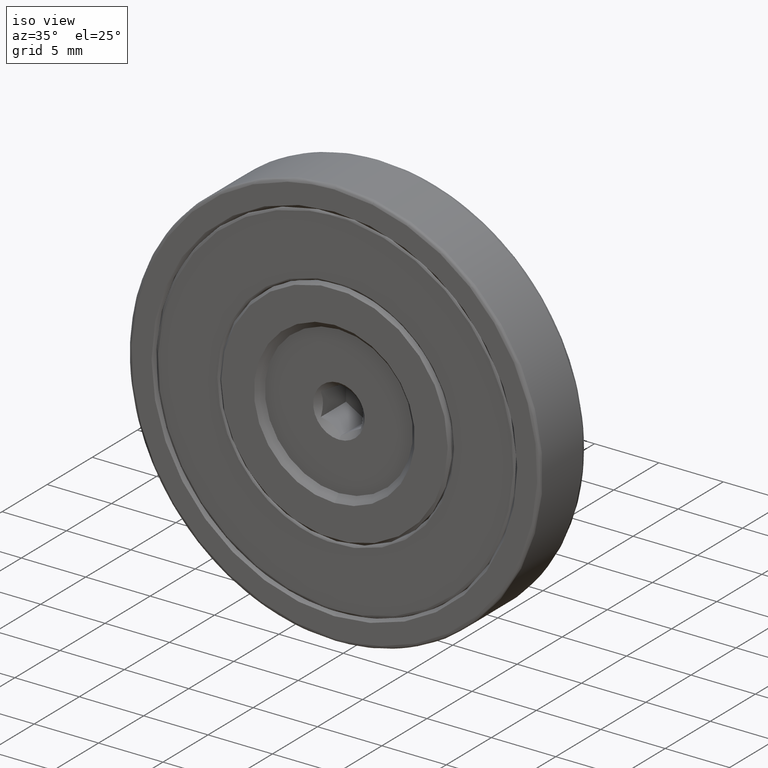
[diagram: clean part render]
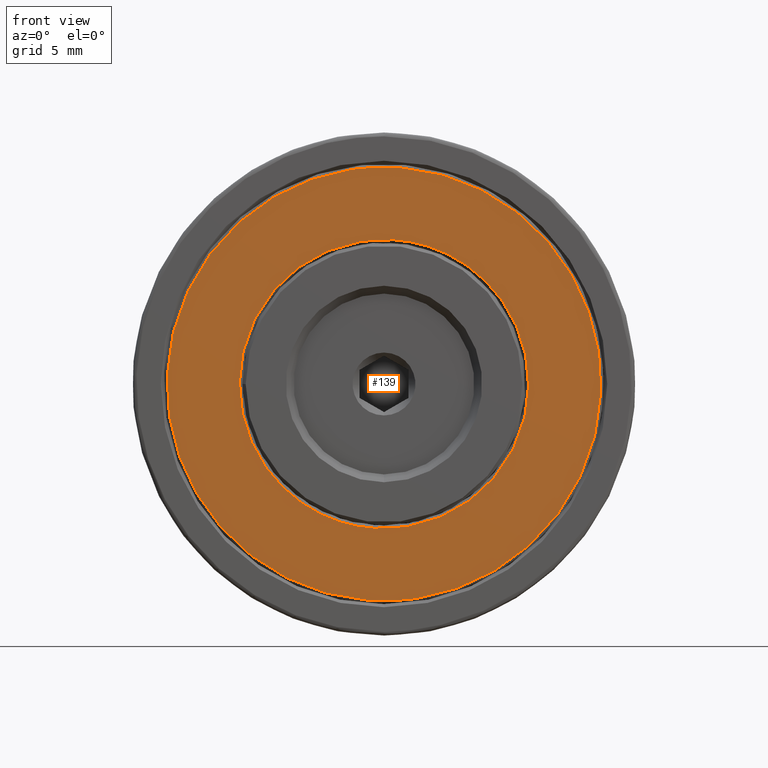
[diagram: tour spotlight — one face highlighted and labeled with its STEP entity id]
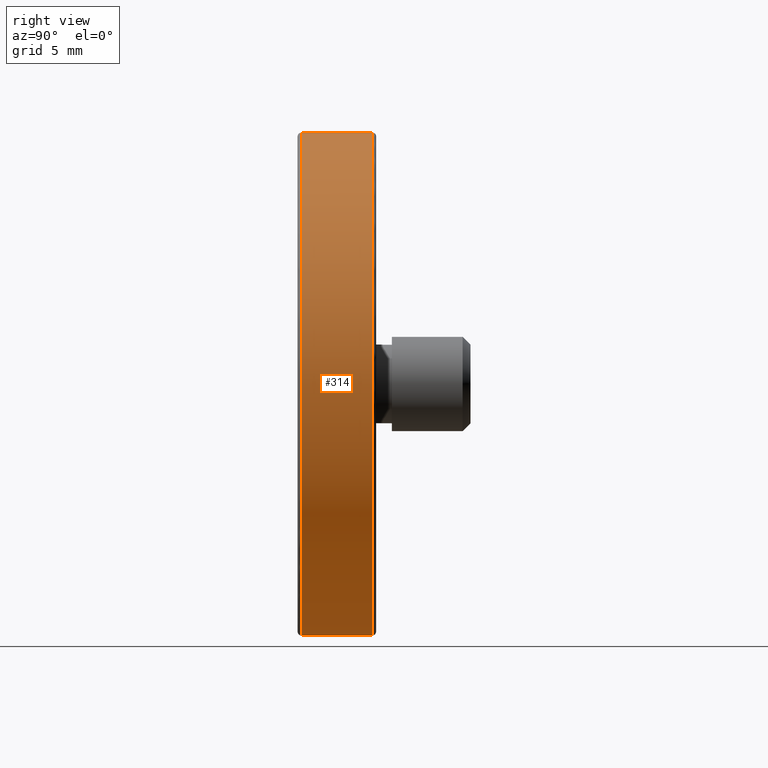
[diagram: tour spotlight — one face highlighted and labeled with its STEP entity id]
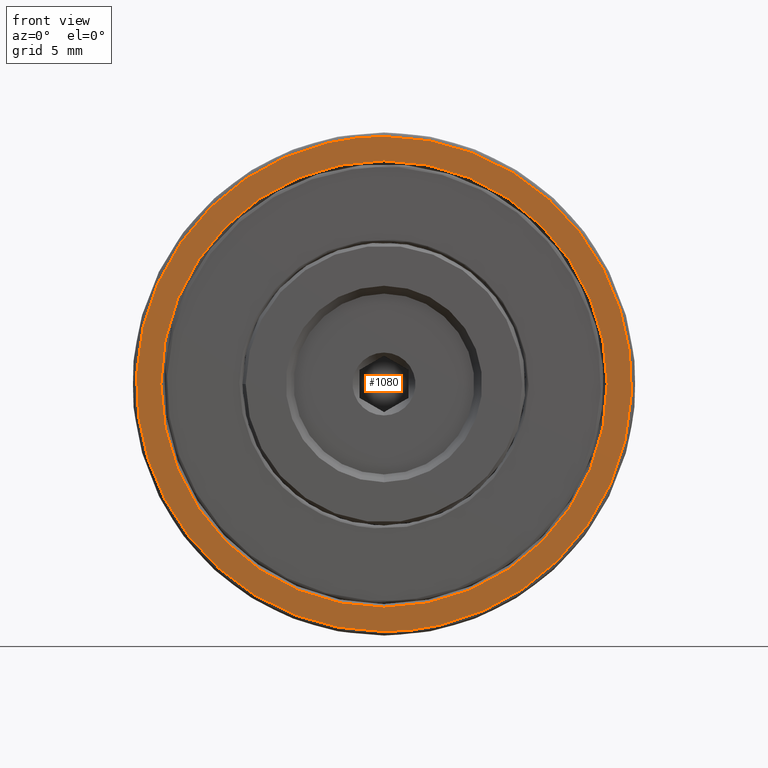
[diagram: tour spotlight — one face highlighted and labeled with its STEP entity id]
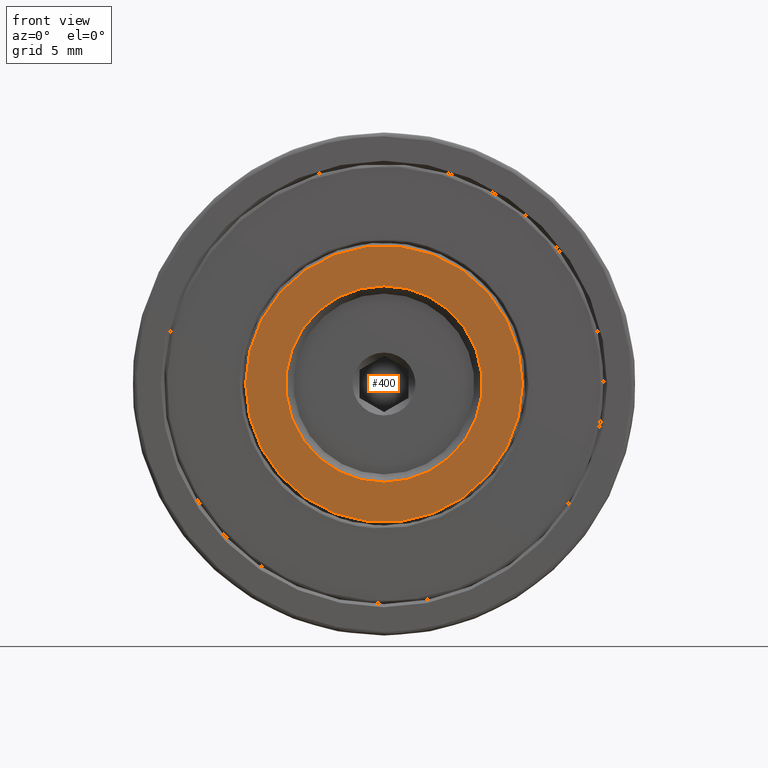
[diagram: tour spotlight — one face highlighted and labeled with its STEP entity id]
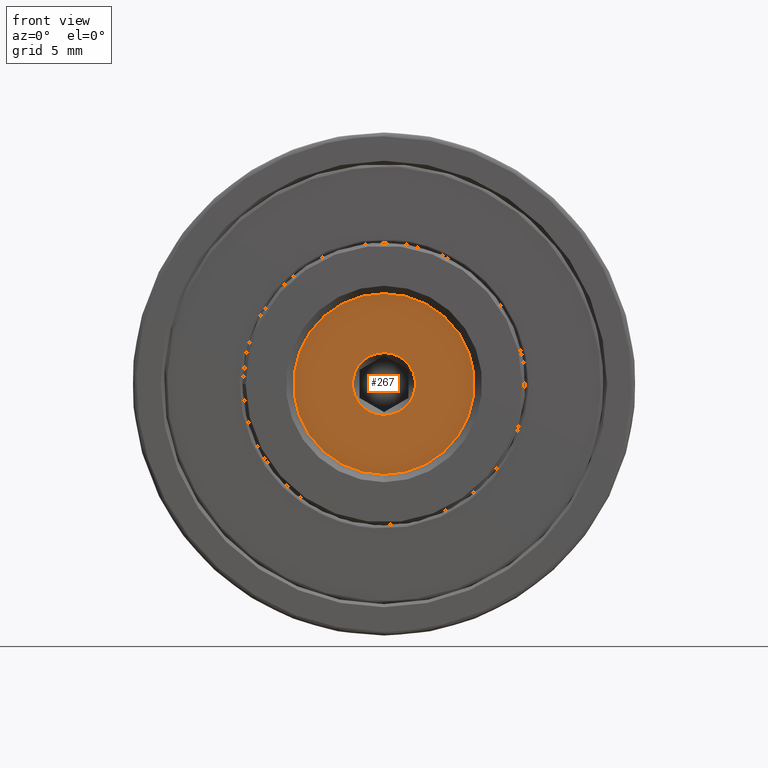
[diagram: tour spotlight — one face highlighted and labeled with its STEP entity id]
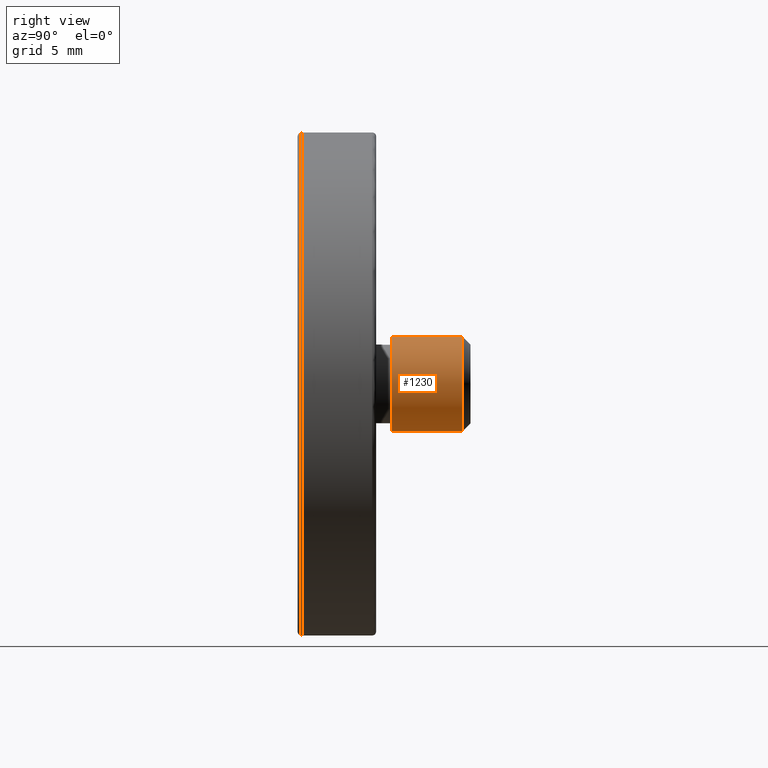
[diagram: tour spotlight — one face highlighted and labeled with its STEP entity id]
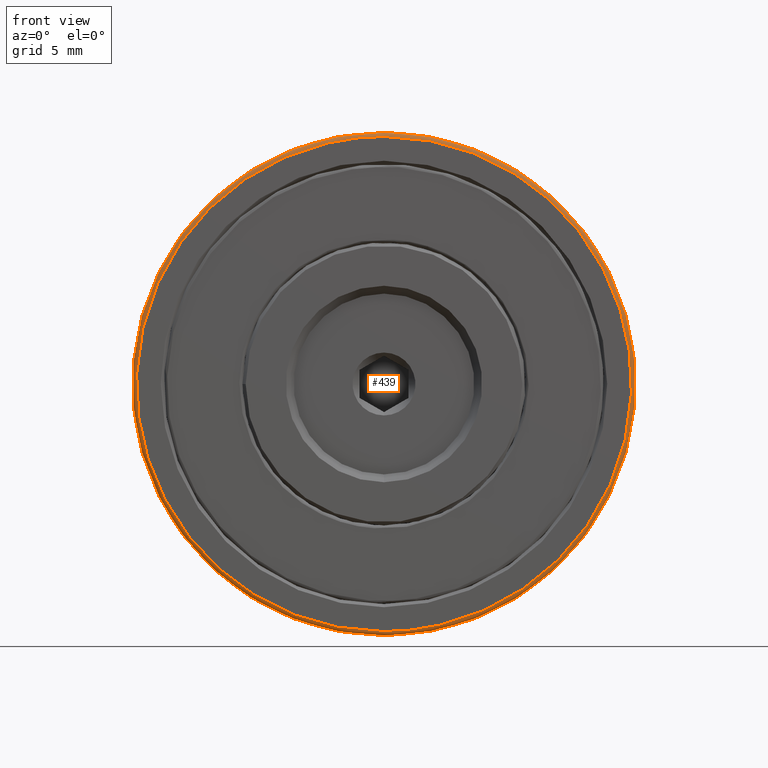
[diagram: tour spotlight — one face highlighted and labeled with its STEP entity id]
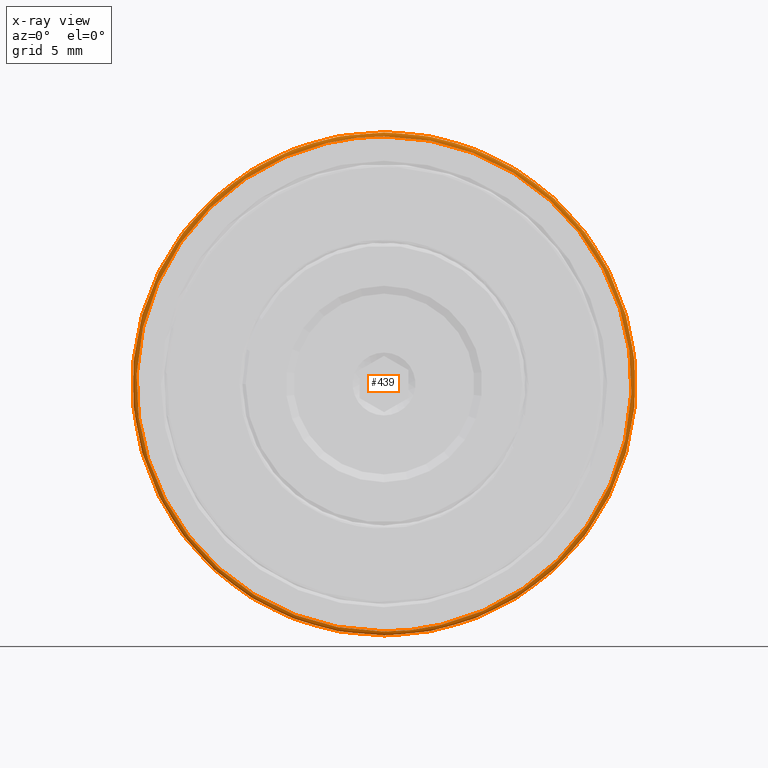
[diagram: x-ray of the same camera — body ghosted, this tour face saturated]
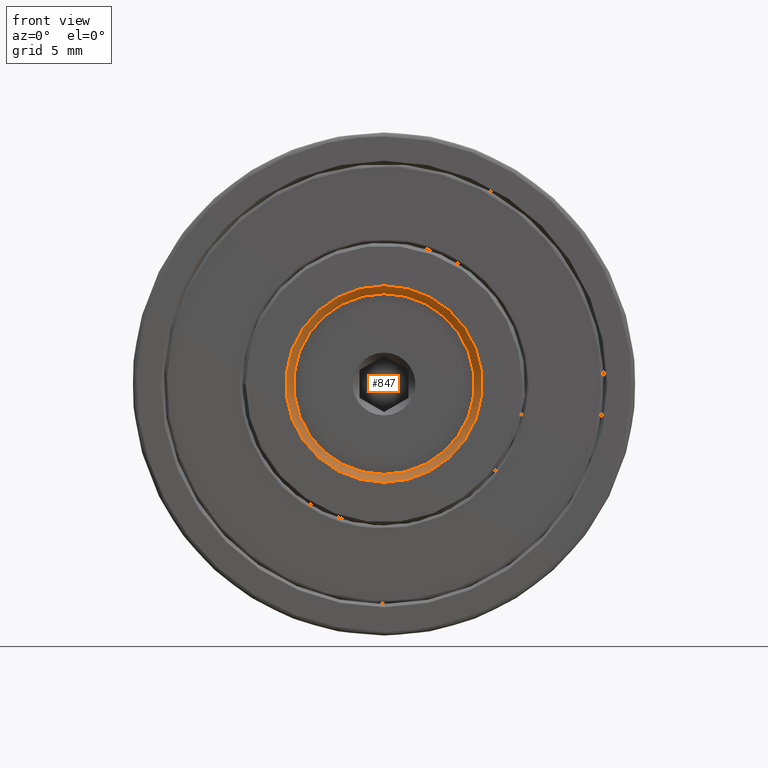
[diagram: tour spotlight — one face highlighted and labeled with its STEP entity id]
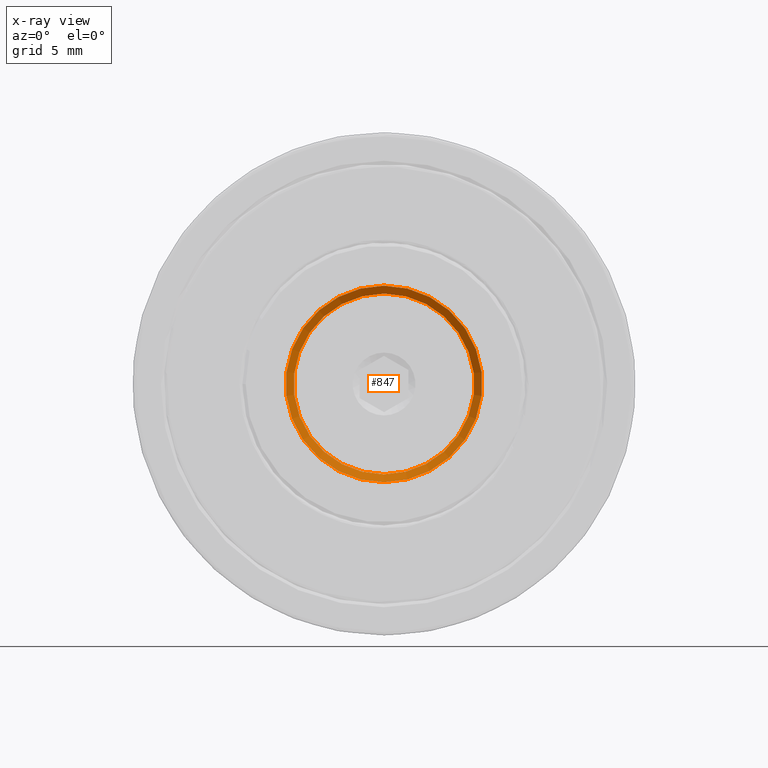
[diagram: x-ray of the same camera — body ghosted, this tour face saturated]
A machine part: a face-by-face anatomy tour. The part has 34 B-rep faces; the first image is the clean iso view, then the 8 largest visible faces are spotlighted one at a time (largest first), each with its STEP entity span.

Face 1 — front view, entity #139. In plain terms, the highlighted planar face has unit normal (-0, 1, 0).
Definition (entity closure, byte-faithful):
#4 = VERTEX_POINT ( 'NONE', #63 ) ;
#28 = CARTESIAN_POINT ( 'NONE',  ( 17.14436299753712589, -5.001574736878457550, 21.55864803919497064 ) ) ;
#39 = CARTESIAN_POINT ( 'NONE',  ( 0.05081765857194815716, -5.001574736878457550, 41.17829909992340731 ) ) ;
#52 = DIRECTION ( 'NONE',  ( 0.06864417722182768189, 0.000000000000000000, 0.9976412065134129259 ) ) ;
#63 = CARTESIAN_POINT ( 'NONE',  ( -1.527998417530087361, -5.001574736878457550, 18.23255135011489969 ) ) ;
#84 = CARTESIAN_POINT ( 'NONE',  ( 0.05081765857194815716, -5.001574736878457550, 41.17829909992340731 ) ) ;
#131 = CARTESIAN_POINT ( 'NONE',  ( -1.527998417530087361, -5.001574736878457550, 18.23255135011489969 ) ) ;
#139 = ADVANCED_FACE ( 'NONE', ( #520, #819 ), #826, .F. ) ;
#152 = CARTESIAN_POINT ( 'NONE',  ( 27.90147817356255544, -5.001574736878457550, 43.87286935856265302 ) ) ;
#164 = CARTESIAN_POINT ( 'NONE',  ( -1.527998417530087361, -5.001574736878457550, 18.23255135011489969 ) ) ;
#165 = ORIENTED_EDGE ( 'NONE', *, *, #623, .F. ) ;
#218 = EDGE_CURVE ( 'NONE', #4, #310, #414, .T. ) ;
#276 = ORIENTED_EDGE ( 'NONE', *, *, #218, .F. ) ;
#310 = VERTEX_POINT ( 'NONE', #731 ) ;
#313 = CARTESIAN_POINT ( 'NONE',  ( -1.212235202309680293, -5.001574736878457550, 22.82170090007659979 ) ) ;
#320 = EDGE_LOOP ( 'NONE', ( #165, #458 ) ) ;
#377 = CARTESIAN_POINT ( 'NONE',  ( -18.30578054127485998, -5.001574736878457550, 42.44135196080503647 ) ) ;
#409 = CARTESIAN_POINT ( 'NONE',  ( 18.40741585841875505, -5.001574736878457550, 39.91524623904177105 ) ) ;
#414 =( BOUNDED_CURVE ( )  B_SPLINE_CURVE ( 3, ( #131, #1116, #911, #418 ),
 .UNSPECIFIED., .F., .T. ) 
 B_SPLINE_CURVE_WITH_KNOTS ( ( 4, 4 ),
 ( 0.000000000000000000, 1.000000000000000000 ),
 .UNSPECIFIED. ) 
 CURVE ( )  GEOMETRIC_REPRESENTATION_ITEM ( )  RATIONAL_B_SPLINE_CURVE ( ( 1.000000000000000000, 0.3333333333333333703, 0.3333333333333333703, 1.000000000000000000 ) ) 
 REPRESENTATION_ITEM ( '' )  );
#418 = CARTESIAN_POINT ( 'NONE',  ( 0.3665808737923556548, -5.001574736878457550, 45.76744864988510386 ) ) ;
#433 = DIRECTION ( 'NONE',  ( -0.000000000000000000, 1.000000000000000000, 0.000000000000000000 ) ) ;
#440 = CARTESIAN_POINT ( 'NONE',  ( 0.05081765857194815716, -5.001574736878457550, 41.17829909992340731 ) ) ;
#458 = ORIENTED_EDGE ( 'NONE', *, *, #935, .F. ) ;
#461 =( BOUNDED_CURVE ( )  B_SPLINE_CURVE ( 3, ( #504, #28, #409, #39 ),
 .UNSPECIFIED., .F., .T. ) 
 B_SPLINE_CURVE_WITH_KNOTS ( ( 4, 4 ),
 ( 0.000000000000000000, 1.000000000000000000 ),
 .UNSPECIFIED. ) 
 CURVE ( )  GEOMETRIC_REPRESENTATION_ITEM ( )  RATIONAL_B_SPLINE_CURVE ( ( 1.000000000000000000, 0.3333333333333333703, 0.3333333333333333703, 1.000000000000000000 ) ) 
 REPRESENTATION_ITEM ( '' )  );
#495 = CARTESIAN_POINT ( 'NONE',  ( -19.56883340215648914, -5.001574736878457550, 24.08475376095822895 ) ) ;
#504 = CARTESIAN_POINT ( 'NONE',  ( -1.212235202309680293, -5.001574736878457550, 22.82170090007659979 ) ) ;
#520 = FACE_BOUND ( 'NONE', #320, .T. ) ;
#568 = AXIS2_PLACEMENT_3D ( 'NONE', #1021, #433, #52 ) ;
#623 = EDGE_CURVE ( 'NONE', #1083, #930, #933, .T. ) ;
#675 =( BOUNDED_CURVE ( )  B_SPLINE_CURVE ( 3, ( #739, #152, #1227, #164 ),
 .UNSPECIFIED., .F., .T. ) 
 B_SPLINE_CURVE_WITH_KNOTS ( ( 4, 4 ),
 ( 0.000000000000000000, 1.000000000000000000 ),
 .UNSPECIFIED. ) 
 CURVE ( )  GEOMETRIC_REPRESENTATION_ITEM ( )  RATIONAL_B_SPLINE_CURVE ( ( 1.000000000000000000, 0.3333333333333333703, 0.3333333333333333703, 1.000000000000000000 ) ) 
 REPRESENTATION_ITEM ( '' )  );
#731 = CARTESIAN_POINT ( 'NONE',  ( 0.3665808737923556548, -5.001574736878457550, 45.76744864988510386 ) ) ;
#739 = CARTESIAN_POINT ( 'NONE',  ( 0.3665808737923556548, -5.001574736878457550, 45.76744864988510386 ) ) ;
#754 = EDGE_LOOP ( 'NONE', ( #816, #276 ) ) ;
#771 = CARTESIAN_POINT ( 'NONE',  ( -1.212235202309680293, -5.001574736878457550, 22.82170090007659979 ) ) ;
#816 = ORIENTED_EDGE ( 'NONE', *, *, #991, .F. ) ;
#819 = FACE_OUTER_BOUND ( 'NONE', #754, .T. ) ;
#826 = PLANE ( 'NONE',  #568 ) ;
#911 = CARTESIAN_POINT ( 'NONE',  ( -27.16831642597784580, -5.001574736878457550, 47.66202794120755470 ) ) ;
#930 = VERTEX_POINT ( 'NONE', #313 ) ;
#933 =( BOUNDED_CURVE ( )  B_SPLINE_CURVE ( 3, ( #84, #377, #495, #771 ),
 .UNSPECIFIED., .F., .T. ) 
 B_SPLINE_CURVE_WITH_KNOTS ( ( 4, 4 ),
 ( 0.000000000000000000, 1.000000000000000000 ),
 .UNSPECIFIED. ) 
 CURVE ( )  GEOMETRIC_REPRESENTATION_ITEM ( )  RATIONAL_B_SPLINE_CURVE ( ( 1.000000000000000000, 0.3333333333333333703, 0.3333333333333333703, 1.000000000000000000 ) ) 
 REPRESENTATION_ITEM ( '' )  );
#935 = EDGE_CURVE ( 'NONE', #930, #1083, #461, .T. ) ;
#991 = EDGE_CURVE ( 'NONE', #310, #4, #675, .T. ) ;
#1021 = CARTESIAN_POINT ( 'NONE',  ( -0.5807087718688666023, -5.001574736878457550, 32.00000000000000000 ) ) ;
#1083 = VERTEX_POINT ( 'NONE', #440 ) ;
#1116 = CARTESIAN_POINT ( 'NONE',  ( -29.06289571730028598, -5.001574736878457550, 20.12713064143734343 ) ) ;
#1227 = CARTESIAN_POINT ( 'NONE',  ( 26.00689888224011170, -5.001574736878457550, 16.33797205879245951 ) ) ;

Face 2 — right view, entity #314. In plain terms, the highlighted cylindrical surface (bore or boss wall) has radius 16 mm, axis along (-0, -1, -0).
Definition (entity closure, byte-faithful):
#35 = ORIENTED_EDGE ( 'NONE', *, *, #748, .T. ) ;
#76 = EDGE_LOOP ( 'NONE', ( #35 ) ) ;
#85 = AXIS2_PLACEMENT_3D ( 'NONE', #934, #1147, #948 ) ;
#145 = ORIENTED_EDGE ( 'NONE', *, *, #329, .F. ) ;
#207 = CIRCLE ( 'NONE', #878, 16.00000000000000000 ) ;
#264 = FACE_OUTER_BOUND ( 'NONE', #1064, .T. ) ;
#314 = ADVANCED_FACE ( 'NONE', ( #264, #550 ), #538, .T. ) ;
#329 = EDGE_CURVE ( 'NONE', #1047, #1047, #207, .T. ) ;
#346 = CIRCLE ( 'NONE', #528, 16.00000000000000000 ) ;
#442 = CARTESIAN_POINT ( 'NONE',  ( -0.5807087718688666023, -4.901574736878457017, 32.00000000000000000 ) ) ;
#471 = VERTEX_POINT ( 'NONE', #573 ) ;
#528 = AXIS2_PLACEMENT_3D ( 'NONE', #442, #1219, #741 ) ;
#538 = CYLINDRICAL_SURFACE ( 'NONE', #85, 16.00000000000000000 ) ;
#550 = FACE_OUTER_BOUND ( 'NONE', #76, .T. ) ;
#573 = CARTESIAN_POINT ( 'NONE',  ( -0.5807087718688666023, -4.901574736878457017, 16.00000000000000000 ) ) ;
#651 = DIRECTION ( 'NONE',  ( 0.000000000000000000, 1.000000000000000000, 0.000000000000000000 ) ) ;
#658 = DIRECTION ( 'NONE',  ( 0.000000000000000000, 0.000000000000000000, 1.000000000000000000 ) ) ;
#741 = DIRECTION ( 'NONE',  ( 0.000000000000000000, 0.000000000000000000, -1.000000000000000000 ) ) ;
#748 = EDGE_CURVE ( 'NONE', #471, #471, #346, .T. ) ;
#878 = AXIS2_PLACEMENT_3D ( 'NONE', #1033, #651, #658 ) ;
#934 = CARTESIAN_POINT ( 'NONE',  ( -0.5807087718688666023, -0.1515747368784573501, 32.00000000000000000 ) ) ;
#948 = DIRECTION ( 'NONE',  ( 0.000000000000000000, 0.000000000000000000, -1.000000000000000000 ) ) ;
#1033 = CARTESIAN_POINT ( 'NONE',  ( -0.5807087718688666023, -0.4015747368784575722, 32.00000000000000000 ) ) ;
#1047 = VERTEX_POINT ( 'NONE', #1149 ) ;
#1064 = EDGE_LOOP ( 'NONE', ( #145 ) ) ;
#1147 = DIRECTION ( 'NONE',  ( -0.000000000000000000, -1.000000000000000000, -0.000000000000000000 ) ) ;
#1149 = CARTESIAN_POINT ( 'NONE',  ( -0.5807087718688666023, -0.4015747368784575722, 48.00000000000000000 ) ) ;
#1219 = DIRECTION ( 'NONE',  ( 0.000000000000000000, 1.000000000000000000, 0.000000000000000000 ) ) ;

Face 3 — front view, entity #1080. In plain terms, the highlighted planar face has unit normal (0, 1, 0).
Definition (entity closure, byte-faithful):
#1 = CARTESIAN_POINT ( 'NONE',  ( -0.5807087718688666023, -5.151574736878457905, 17.79999999999999716 ) ) ;
#16 = CARTESIAN_POINT ( 'NONE',  ( -0.5807087718688647149, -5.151574736878457905, 16.25000000000000000 ) ) ;
#62 = FACE_OUTER_BOUND ( 'NONE', #153, .T. ) ;
#109 = AXIS2_PLACEMENT_3D ( 'NONE', #1011, #936, #1016 ) ;
#111 = CARTESIAN_POINT ( 'NONE',  ( -0.5807087718688666023, -5.151574736878457905, 47.75000000000000000 ) ) ;
#115 =( BOUNDED_CURVE ( )  B_SPLINE_CURVE ( 3, ( #169, #248, #175, #444 ),
 .UNSPECIFIED., .F., .T. ) 
 B_SPLINE_CURVE_WITH_KNOTS ( ( 4, 4 ),
 ( 0.000000000000000000, 1.000000000000000000 ),
 .UNSPECIFIED. ) 
 CURVE ( )  GEOMETRIC_REPRESENTATION_ITEM ( )  RATIONAL_B_SPLINE_CURVE ( ( 1.000000000000000000, 0.3333333333333333703, 0.3333333333333333703, 1.000000000000000000 ) ) 
 REPRESENTATION_ITEM ( '' )  );
#153 = EDGE_LOOP ( 'NONE', ( #594, #1159 ) ) ;
#169 = CARTESIAN_POINT ( 'NONE',  ( -0.5807087718688647149, -5.151574736878457905, 16.25000000000000000 ) ) ;
#175 = CARTESIAN_POINT ( 'NONE',  ( -32.08070877186885639, -5.151574736878457905, 47.75000000000000000 ) ) ;
#187 = AXIS2_PLACEMENT_3D ( 'NONE', #1225, #1214, #1238 ) ;
#248 = CARTESIAN_POINT ( 'NONE',  ( -32.08070877186885639, -5.151574736878457905, 16.24999999999999645 ) ) ;
#308 = EDGE_CURVE ( 'NONE', #995, #679, #115, .T. ) ;
#363 = CARTESIAN_POINT ( 'NONE',  ( -0.5807087718688666023, -5.151574736878457905, 47.75000000000000000 ) ) ;
#403 = ORIENTED_EDGE ( 'NONE', *, *, #496, .F. ) ;
#444 = CARTESIAN_POINT ( 'NONE',  ( -0.5807087718688666023, -5.151574736878457905, 47.75000000000000000 ) ) ;
#447 = EDGE_LOOP ( 'NONE', ( #403 ) ) ;
#493 = CARTESIAN_POINT ( 'NONE',  ( 30.91929122813112585, -5.151574736878457905, 47.75000000000000000 ) ) ;
#496 = EDGE_CURVE ( 'NONE', #1248, #1248, #732, .T. ) ;
#534 = PLANE ( 'NONE',  #109 ) ;
#594 = ORIENTED_EDGE ( 'NONE', *, *, #975, .F. ) ;
#679 = VERTEX_POINT ( 'NONE', #363 ) ;
#732 = CIRCLE ( 'NONE', #187, 14.20000000000000462 ) ;
#821 = CARTESIAN_POINT ( 'NONE',  ( -0.5807087718688647149, -5.151574736878457905, 16.25000000000000000 ) ) ;
#887 = CARTESIAN_POINT ( 'NONE',  ( 30.91929122813113295, -5.151574736878457905, 16.25000000000000355 ) ) ;
#936 = DIRECTION ( 'NONE',  ( 0.000000000000000000, 1.000000000000000000, 0.000000000000000000 ) ) ;
#940 =( BOUNDED_CURVE ( )  B_SPLINE_CURVE ( 3, ( #111, #493, #887, #16 ),
 .UNSPECIFIED., .F., .T. ) 
 B_SPLINE_CURVE_WITH_KNOTS ( ( 4, 4 ),
 ( 0.000000000000000000, 1.000000000000000000 ),
 .UNSPECIFIED. ) 
 CURVE ( )  GEOMETRIC_REPRESENTATION_ITEM ( )  RATIONAL_B_SPLINE_CURVE ( ( 1.000000000000000000, 0.3333333333333333703, 0.3333333333333333703, 1.000000000000000000 ) ) 
 REPRESENTATION_ITEM ( '' )  );
#975 = EDGE_CURVE ( 'NONE', #679, #995, #940, .T. ) ;
#995 = VERTEX_POINT ( 'NONE', #821 ) ;
#1011 = CARTESIAN_POINT ( 'NONE',  ( -0.5807087718688666023, -5.151574736878457905, 32.00000000000000000 ) ) ;
#1016 = DIRECTION ( 'NONE',  ( 0.000000000000000000, -0.000000000000000000, 1.000000000000000000 ) ) ;
#1034 = FACE_BOUND ( 'NONE', #447, .T. ) ;
#1080 = ADVANCED_FACE ( 'NONE', ( #62, #1034 ), #534, .F. ) ;
#1159 = ORIENTED_EDGE ( 'NONE', *, *, #308, .F. ) ;
#1214 = DIRECTION ( 'NONE',  ( 0.000000000000000000, -1.000000000000000000, 0.000000000000000000 ) ) ;
#1225 = CARTESIAN_POINT ( 'NONE',  ( -0.5807087718688666023, -5.151574736878457905, 32.00000000000000000 ) ) ;
#1238 = DIRECTION ( 'NONE',  ( 0.000000000000000000, 0.000000000000000000, -1.000000000000000000 ) ) ;
#1248 = VERTEX_POINT ( 'NONE', #1 ) ;

Face 4 — front view, entity #400. In plain terms, the highlighted planar face has unit normal (0, 1, 0).
Definition (entity closure, byte-faithful):
#78 = DIRECTION ( 'NONE',  ( 0.000000000000000000, -0.000000000000000000, 1.000000000000000000 ) ) ;
#102 = CARTESIAN_POINT ( 'NONE',  ( -0.5807087718688666023, -5.151574736878457905, 32.00000000000000000 ) ) ;
#144 = DIRECTION ( 'NONE',  ( -1.000000000000000000, 0.000000000000000000, 0.000000000000000000 ) ) ;
#197 = ORIENTED_EDGE ( 'NONE', *, *, #1105, .F. ) ;
#279 = VERTEX_POINT ( 'NONE', #767 ) ;
#379 = DIRECTION ( 'NONE',  ( 0.000000000000000000, 0.000000000000000000, -1.000000000000000000 ) ) ;
#400 = ADVANCED_FACE ( 'NONE', ( #744, #1129 ), #1134, .F. ) ;
#411 = EDGE_LOOP ( 'NONE', ( #1171 ) ) ;
#671 = CIRCLE ( 'NONE', #1221, 6.250000000022737368 ) ;
#744 = FACE_BOUND ( 'NONE', #411, .T. ) ;
#767 = CARTESIAN_POINT ( 'NONE',  ( -0.5807087718688666023, -5.151574736878457905, 25.74999999997726263 ) ) ;
#820 = AXIS2_PLACEMENT_3D ( 'NONE', #1211, #832, #144 ) ;
#832 = DIRECTION ( 'NONE',  ( 1.505836350674311564E-18, 1.000000000000000000, 0.000000000000000000 ) ) ;
#954 = DIRECTION ( 'NONE',  ( 0.000000000000000000, 1.000000000000000000, 0.000000000000000000 ) ) ;
#1041 = CARTESIAN_POINT ( 'NONE',  ( -9.380708771868876639, -5.151574736878457905, 32.00000000000000000 ) ) ;
#1060 = VERTEX_POINT ( 'NONE', #1041 ) ;
#1105 = EDGE_CURVE ( 'NONE', #1060, #1060, #1186, .T. ) ;
#1129 = FACE_OUTER_BOUND ( 'NONE', #1185, .T. ) ;
#1134 = PLANE ( 'NONE',  #1241 ) ;
#1155 = DIRECTION ( 'NONE',  ( 0.000000000000000000, -1.000000000000000000, 0.000000000000000000 ) ) ;
#1171 = ORIENTED_EDGE ( 'NONE', *, *, #1249, .F. ) ;
#1185 = EDGE_LOOP ( 'NONE', ( #197 ) ) ;
#1186 = CIRCLE ( 'NONE', #820, 8.800000000000009592 ) ;
#1211 = CARTESIAN_POINT ( 'NONE',  ( -0.5807087718688666023, -5.151574736878457905, 32.00000000000000000 ) ) ;
#1221 = AXIS2_PLACEMENT_3D ( 'NONE', #102, #1155, #379 ) ;
#1232 = CARTESIAN_POINT ( 'NONE',  ( -0.5807087718688666023, -5.151574736878457905, 32.00000000000000000 ) ) ;
#1241 = AXIS2_PLACEMENT_3D ( 'NONE', #1232, #954, #78 ) ;
#1249 = EDGE_CURVE ( 'NONE', #279, #279, #671, .T. ) ;

Face 5 — front view, entity #267. In plain terms, the highlighted planar face has unit normal (0, -1, 0).
Definition (entity closure, byte-faithful):
#7 = CARTESIAN_POINT ( 'NONE',  ( -0.5807087718688666023, -4.651574736947124755, 29.99999999999045031 ) ) ;
#33 = EDGE_CURVE ( 'NONE', #1054, #1054, #1082, .T. ) ;
#222 = EDGE_LOOP ( 'NONE', ( #631 ) ) ;
#267 = ADVANCED_FACE ( 'NONE', ( #492, #719 ), #808, .T. ) ;
#331 = CARTESIAN_POINT ( 'NONE',  ( -0.5807087718688666023, -4.651574736947124755, 32.00000000000000000 ) ) ;
#469 = AXIS2_PLACEMENT_3D ( 'NONE', #331, #1112, #622 ) ;
#492 = FACE_OUTER_BOUND ( 'NONE', #1035, .T. ) ;
#526 = DIRECTION ( 'NONE',  ( 0.000000000000000000, -1.000000000000000000, 0.000000000000000000 ) ) ;
#574 = DIRECTION ( 'NONE',  ( 0.000000000000000000, -1.000000000000000000, 0.000000000000000000 ) ) ;
#585 = CARTESIAN_POINT ( 'NONE',  ( -0.5807087718688666023, -4.651574736878457905, 32.00000000000000000 ) ) ;
#622 = DIRECTION ( 'NONE',  ( 0.000000000000000000, 0.000000000000000000, -1.000000000000000000 ) ) ;
#631 = ORIENTED_EDGE ( 'NONE', *, *, #1066, .T. ) ;
#645 = VERTEX_POINT ( 'NONE', #7 ) ;
#649 = CIRCLE ( 'NONE', #469, 2.000000000009549694 ) ;
#654 = DIRECTION ( 'NONE',  ( 0.000000000000000000, 0.000000000000000000, -1.000000000000000000 ) ) ;
#666 = CARTESIAN_POINT ( 'NONE',  ( -0.5807087718688666023, -4.651574736890281336, 26.24999999996543920 ) ) ;
#719 = FACE_BOUND ( 'NONE', #222, .T. ) ;
#750 = CARTESIAN_POINT ( 'NONE',  ( -0.5807087718688666023, -4.651574736890281336, 32.00000000000000000 ) ) ;
#800 = AXIS2_PLACEMENT_3D ( 'NONE', #750, #574, #654 ) ;
#808 = PLANE ( 'NONE',  #1161 ) ;
#886 = DIRECTION ( 'NONE',  ( 0.000000000000000000, -0.000000000000000000, -1.000000000000000000 ) ) ;
#1035 = EDGE_LOOP ( 'NONE', ( #1200 ) ) ;
#1054 = VERTEX_POINT ( 'NONE', #666 ) ;
#1066 = EDGE_CURVE ( 'NONE', #645, #645, #649, .T. ) ;
#1082 = CIRCLE ( 'NONE', #800, 5.750000000034560799 ) ;
#1112 = DIRECTION ( 'NONE',  ( -0.000000000000000000, 1.000000000000000000, -0.000000000000000000 ) ) ;
#1161 = AXIS2_PLACEMENT_3D ( 'NONE', #585, #526, #886 ) ;
#1200 = ORIENTED_EDGE ( 'NONE', *, *, #33, .T. ) ;

Face 6 — right view, entity #1230. In plain terms, the highlighted cylindrical surface (bore or boss wall) has radius 3 mm, axis along (-0, -1, -0).
Definition (entity closure, byte-faithful):
#69 = DIRECTION ( 'NONE',  ( 0.000000000000000000, 0.000000000000000000, -1.000000000000000000 ) ) ;
#96 = CARTESIAN_POINT ( 'NONE',  ( -0.5807087718688666023, 0.8484252631215426499, 29.00000000000000000 ) ) ;
#158 = FACE_OUTER_BOUND ( 'NONE', #361, .T. ) ;
#242 = DIRECTION ( 'NONE',  ( 0.000000000000000000, 0.000000000000000000, -1.000000000000000000 ) ) ;
#254 = DIRECTION ( 'NONE',  ( -0.000000000000000000, -1.000000000000000000, -0.000000000000000000 ) ) ;
#272 = VERTEX_POINT ( 'NONE', #659 ) ;
#288 = VERTEX_POINT ( 'NONE', #96 ) ;
#352 = CARTESIAN_POINT ( 'NONE',  ( -0.5807087718688666023, 5.348425263121539430, 32.00000000000000000 ) ) ;
#361 = EDGE_LOOP ( 'NONE', ( #908 ) ) ;
#391 = EDGE_CURVE ( 'NONE', #272, #272, #527, .T. ) ;
#406 = AXIS2_PLACEMENT_3D ( 'NONE', #352, #1053, #856 ) ;
#446 = DIRECTION ( 'NONE',  ( 0.000000000000000000, 1.000000000000000000, 0.000000000000000000 ) ) ;
#527 = CIRCLE ( 'NONE', #406, 2.999999999999999112 ) ;
#539 = CARTESIAN_POINT ( 'NONE',  ( -0.5807087718688666023, 5.848425263121542095, 32.00000000000000000 ) ) ;
#617 = FACE_OUTER_BOUND ( 'NONE', #790, .T. ) ;
#635 = CYLINDRICAL_SURFACE ( 'NONE', #881, 2.999999999999999112 ) ;
#659 = CARTESIAN_POINT ( 'NONE',  ( -0.5807087718688666023, 5.348425263121539430, 29.00000000000000000 ) ) ;
#790 = EDGE_LOOP ( 'NONE', ( #918 ) ) ;
#856 = DIRECTION ( 'NONE',  ( 0.000000000000000000, 0.000000000000000000, -1.000000000000000000 ) ) ;
#881 = AXIS2_PLACEMENT_3D ( 'NONE', #539, #254, #69 ) ;
#908 = ORIENTED_EDGE ( 'NONE', *, *, #1158, .T. ) ;
#918 = ORIENTED_EDGE ( 'NONE', *, *, #391, .T. ) ;
#1053 = DIRECTION ( 'NONE',  ( -0.000000000000000000, -1.000000000000000000, -0.000000000000000000 ) ) ;
#1103 = CIRCLE ( 'NONE', #1163, 2.999999999999999112 ) ;
#1117 = CARTESIAN_POINT ( 'NONE',  ( -0.5807087718688666023, 0.8484252631215426499, 32.00000000000000000 ) ) ;
#1158 = EDGE_CURVE ( 'NONE', #288, #288, #1103, .T. ) ;
#1163 = AXIS2_PLACEMENT_3D ( 'NONE', #1117, #446, #242 ) ;
#1230 = ADVANCED_FACE ( 'NONE', ( #617, #158 ), #635, .T. ) ;

Face 7 — front view, entity #439. An x-ray twin of the same camera follows (body ghosted, this face saturated) — the face is partly hidden behind the body. In plain terms, the highlighted face is a freeform B-spline surface patch.
Definition (entity closure, byte-faithful):
#6 = CARTESIAN_POINT ( 'NONE',  ( -32.37360199068232447, -5.151574736878457017, 16.10355339059326951 ) ) ;
#13 = CARTESIAN_POINT ( 'NONE',  ( -32.08070877186887060, -5.151574736878456129, 47.75000000000000000 ) ) ;
#16 = CARTESIAN_POINT ( 'NONE',  ( -0.5807087718688647149, -5.151574736878457905, 16.25000000000000000 ) ) ;
#87 = CARTESIAN_POINT ( 'NONE',  ( -32.08070877186887060, -5.151574736878456129, 16.25000000000000355 ) ) ;
#94 = CARTESIAN_POINT ( 'NONE',  ( 30.91929122813113651, -5.151574736878456129, 47.75000000000000000 ) ) ;
#101 = CARTESIAN_POINT ( 'NONE',  ( 31.21218444694459038, -5.151574736878457017, 16.10355339059326951 ) ) ;
#107 = CARTESIAN_POINT ( 'NONE',  ( -32.58070877186886349, -5.048021346285183064, 16.00000000000000000 ) ) ;
#111 = CARTESIAN_POINT ( 'NONE',  ( -0.5807087718688666023, -5.151574736878457905, 47.75000000000000000 ) ) ;
#115 =( BOUNDED_CURVE ( )  B_SPLINE_CURVE ( 3, ( #169, #248, #175, #444 ),
 .UNSPECIFIED., .F., .T. ) 
 B_SPLINE_CURVE_WITH_KNOTS ( ( 4, 4 ),
 ( 0.000000000000000000, 1.000000000000000000 ),
 .UNSPECIFIED. ) 
 CURVE ( )  GEOMETRIC_REPRESENTATION_ITEM ( )  RATIONAL_B_SPLINE_CURVE ( ( 1.000000000000000000, 0.3333333333333333703, 0.3333333333333333703, 1.000000000000000000 ) ) 
 REPRESENTATION_ITEM ( '' )  );
#116 = CARTESIAN_POINT ( 'NONE',  ( 30.91929122813113651, -5.151574736878456129, 16.25000000000000355 ) ) ;
#169 = CARTESIAN_POINT ( 'NONE',  ( -0.5807087718688647149, -5.151574736878457905, 16.25000000000000000 ) ) ;
#175 = CARTESIAN_POINT ( 'NONE',  ( -32.08070877186885639, -5.151574736878457905, 47.75000000000000000 ) ) ;
#188 = CARTESIAN_POINT ( 'NONE',  ( -32.58070877186886349, -5.048021346285183064, 48.00000000000000000 ) ) ;
#248 = CARTESIAN_POINT ( 'NONE',  ( -32.08070877186885639, -5.151574736878457905, 16.24999999999999645 ) ) ;
#278 = CARTESIAN_POINT ( 'NONE',  ( 31.21218444694459038, -5.151574736878457017, 47.89644660940672338 ) ) ;
#308 = EDGE_CURVE ( 'NONE', #995, #679, #115, .T. ) ;
#346 = CIRCLE ( 'NONE', #528, 16.00000000000000000 ) ;
#363 = CARTESIAN_POINT ( 'NONE',  ( -0.5807087718688666023, -5.151574736878457905, 47.75000000000000000 ) ) ;
#373 = CARTESIAN_POINT ( 'NONE',  ( -0.5807087718688667133, -5.048021346285182176, 48.00000000000000000 ) ) ;
#378 = CARTESIAN_POINT ( 'NONE',  ( -0.5807087718688667133, -5.048021346285182176, 48.00000000000000000 ) ) ;
#386 = CARTESIAN_POINT ( 'NONE',  ( 31.41929122813113651, -5.048021346285183064, 16.00000000000000000 ) ) ;
#393 = CARTESIAN_POINT ( 'NONE',  ( -32.37360199068232447, -5.151574736878457017, 47.89644660940672338 ) ) ;
#439 = ADVANCED_FACE ( 'NONE', ( #874, #1160 ), #900, .T. ) ;
#442 = CARTESIAN_POINT ( 'NONE',  ( -0.5807087718688666023, -4.901574736878457017, 32.00000000000000000 ) ) ;
#444 = CARTESIAN_POINT ( 'NONE',  ( -0.5807087718688666023, -5.151574736878457905, 47.75000000000000000 ) ) ;
#471 = VERTEX_POINT ( 'NONE', #573 ) ;
#483 = CARTESIAN_POINT ( 'NONE',  ( -0.5807087718688666023, -5.151574736878457905, 16.25000000000000000 ) ) ;
#493 = CARTESIAN_POINT ( 'NONE',  ( 30.91929122813112585, -5.151574736878457905, 47.75000000000000000 ) ) ;
#528 = AXIS2_PLACEMENT_3D ( 'NONE', #442, #1219, #741 ) ;
#562 = EDGE_LOOP ( 'NONE', ( #625, #1237 ) ) ;
#572 = CARTESIAN_POINT ( 'NONE',  ( -0.5807087718688666023, -5.151574736878457905, 47.75000000000000000 ) ) ;
#573 = CARTESIAN_POINT ( 'NONE',  ( -0.5807087718688666023, -4.901574736878457017, 16.00000000000000000 ) ) ;
#578 = CARTESIAN_POINT ( 'NONE',  ( -0.5807087718688666023, -5.151574736878457905, 47.75000000000000000 ) ) ;
#583 = CARTESIAN_POINT ( 'NONE',  ( 31.41929122813112940, -4.901574736878457017, 48.00000000000000000 ) ) ;
#625 = ORIENTED_EDGE ( 'NONE', *, *, #975, .T. ) ;
#674 = CARTESIAN_POINT ( 'NONE',  ( 31.41929122813113651, -5.048021346285183064, 48.00000000000000000 ) ) ;
#679 = VERTEX_POINT ( 'NONE', #363 ) ;
#741 = DIRECTION ( 'NONE',  ( 0.000000000000000000, 0.000000000000000000, -1.000000000000000000 ) ) ;
#748 = EDGE_CURVE ( 'NONE', #471, #471, #346, .T. ) ;
#765 = CARTESIAN_POINT ( 'NONE',  ( -0.5807087718688667133, -5.048021346285182176, 16.00000000000000000 ) ) ;
#772 = CARTESIAN_POINT ( 'NONE',  ( -0.5807087718688667133, -5.151574736878457017, 47.89644660940672338 ) ) ;
#792 = CARTESIAN_POINT ( 'NONE',  ( -0.5807087718688666023, -4.901574736878457017, 48.00000000000000000 ) ) ;
#821 = CARTESIAN_POINT ( 'NONE',  ( -0.5807087718688647149, -5.151574736878457905, 16.25000000000000000 ) ) ;
#863 = CARTESIAN_POINT ( 'NONE',  ( -0.5807087718688666023, -4.901574736878457017, 48.00000000000000000 ) ) ;
#874 = FACE_OUTER_BOUND ( 'NONE', #562, .T. ) ;
#887 = CARTESIAN_POINT ( 'NONE',  ( 30.91929122813113295, -5.151574736878457905, 16.25000000000000355 ) ) ;
#900 =( BOUNDED_SURFACE ( )  B_SPLINE_SURFACE ( 3, 3, ( 
 ( #792, #583, #1079, #1059, #1246, #968, #863 ),
 ( #373, #674, #386, #765, #107, #188, #378 ),
 ( #1067, #278, #101, #1154, #6, #393, #772 ),
 ( #572, #94, #116, #483, #87, #13, #578 ) ),
 .UNSPECIFIED., .F., .T., .T. ) 
 B_SPLINE_SURFACE_WITH_KNOTS ( ( 4, 4 ),
 ( 4, 3, 4 ),
 ( 0.000000000000000000, 1.000000000000000000 ),
 ( 0.000000000000000000, 0.5000000000000000000, 1.000000000000000000 ),
 .UNSPECIFIED. ) 
 GEOMETRIC_REPRESENTATION_ITEM ( )  RATIONAL_B_SPLINE_SURFACE ( (
 ( 1.000000000000000000, 0.3333333333333333148, 0.3333333333333333148, 1.000000000000000000, 0.3333333333333333148, 0.3333333333333333148, 1.000000000000000000),
 ( 0.8047378541243649375, 0.2682459513747882940, 0.2682459513747882940, 0.8047378541243649375, 0.2682459513747882940, 0.2682459513747882940, 0.8047378541243649375),
 ( 0.8047378541243649375, 0.2682459513747882940, 0.2682459513747882940, 0.8047378541243649375, 0.2682459513747882940, 0.2682459513747882940, 0.8047378541243649375),
 ( 1.000000000000000000, 0.3333333333333333148, 0.3333333333333333148, 1.000000000000000000, 0.3333333333333333148, 0.3333333333333333148, 1.000000000000000000) ) ) 
 REPRESENTATION_ITEM ( '' )  SURFACE ( )  );
#940 =( BOUNDED_CURVE ( )  B_SPLINE_CURVE ( 3, ( #111, #493, #887, #16 ),
 .UNSPECIFIED., .F., .T. ) 
 B_SPLINE_CURVE_WITH_KNOTS ( ( 4, 4 ),
 ( 0.000000000000000000, 1.000000000000000000 ),
 .UNSPECIFIED. ) 
 CURVE ( )  GEOMETRIC_REPRESENTATION_ITEM ( )  RATIONAL_B_SPLINE_CURVE ( ( 1.000000000000000000, 0.3333333333333333703, 0.3333333333333333703, 1.000000000000000000 ) ) 
 REPRESENTATION_ITEM ( '' )  );
#968 = CARTESIAN_POINT ( 'NONE',  ( -32.58070877186887060, -4.901574736878457017, 48.00000000000000000 ) ) ;
#975 = EDGE_CURVE ( 'NONE', #679, #995, #940, .T. ) ;
#984 = ORIENTED_EDGE ( 'NONE', *, *, #748, .F. ) ;
#995 = VERTEX_POINT ( 'NONE', #821 ) ;
#1059 = CARTESIAN_POINT ( 'NONE',  ( -0.5807087718688666023, -4.901574736878457017, 16.00000000000000000 ) ) ;
#1067 = CARTESIAN_POINT ( 'NONE',  ( -0.5807087718688667133, -5.151574736878457017, 47.89644660940672338 ) ) ;
#1079 = CARTESIAN_POINT ( 'NONE',  ( 31.41929122813112940, -4.901574736878457017, 16.00000000000000000 ) ) ;
#1089 = EDGE_LOOP ( 'NONE', ( #984 ) ) ;
#1154 = CARTESIAN_POINT ( 'NONE',  ( -0.5807087718688667133, -5.151574736878457017, 16.10355339059327306 ) ) ;
#1160 = FACE_OUTER_BOUND ( 'NONE', #1089, .T. ) ;
#1219 = DIRECTION ( 'NONE',  ( 0.000000000000000000, 1.000000000000000000, 0.000000000000000000 ) ) ;
#1237 = ORIENTED_EDGE ( 'NONE', *, *, #308, .T. ) ;
#1246 = CARTESIAN_POINT ( 'NONE',  ( -32.58070877186887060, -4.901574736878457017, 16.00000000000000000 ) ) ;

Face 8 — front view, entity #847. An x-ray twin of the same camera follows (body ghosted, this face saturated) — the face is partly hidden behind the body. In plain terms, the highlighted conical surface has half-angle 45 deg.
Definition (entity closure, byte-faithful):
#33 = EDGE_CURVE ( 'NONE', #1054, #1054, #1082, .T. ) ;
#46 = EDGE_LOOP ( 'NONE', ( #762 ) ) ;
#102 = CARTESIAN_POINT ( 'NONE',  ( -0.5807087718688666023, -5.151574736878457905, 32.00000000000000000 ) ) ;
#239 = CARTESIAN_POINT ( 'NONE',  ( -0.5807087718688666023, -5.151574736935301324, 32.00000000000000000 ) ) ;
#245 = AXIS2_PLACEMENT_3D ( 'NONE', #239, #1136, #350 ) ;
#279 = VERTEX_POINT ( 'NONE', #767 ) ;
#350 = DIRECTION ( 'NONE',  ( 0.000000000000000000, 0.000000000000000000, -1.000000000000000000 ) ) ;
#379 = DIRECTION ( 'NONE',  ( 0.000000000000000000, 0.000000000000000000, -1.000000000000000000 ) ) ;
#436 = FACE_OUTER_BOUND ( 'NONE', #952, .T. ) ;
#574 = DIRECTION ( 'NONE',  ( 0.000000000000000000, -1.000000000000000000, 0.000000000000000000 ) ) ;
#648 = FACE_BOUND ( 'NONE', #46, .T. ) ;
#654 = DIRECTION ( 'NONE',  ( 0.000000000000000000, 0.000000000000000000, -1.000000000000000000 ) ) ;
#666 = CARTESIAN_POINT ( 'NONE',  ( -0.5807087718688666023, -4.651574736890281336, 26.24999999996543920 ) ) ;
#671 = CIRCLE ( 'NONE', #1221, 6.250000000022737368 ) ;
#750 = CARTESIAN_POINT ( 'NONE',  ( -0.5807087718688666023, -4.651574736890281336, 32.00000000000000000 ) ) ;
#752 = CONICAL_SURFACE ( 'NONE', #245, 6.250000000079580786, 0.7853981633974482790 ) ;
#762 = ORIENTED_EDGE ( 'NONE', *, *, #33, .F. ) ;
#767 = CARTESIAN_POINT ( 'NONE',  ( -0.5807087718688666023, -5.151574736878457905, 25.74999999997726263 ) ) ;
#800 = AXIS2_PLACEMENT_3D ( 'NONE', #750, #574, #654 ) ;
#847 = ADVANCED_FACE ( 'NONE', ( #436, #648 ), #752, .F. ) ;
#952 = EDGE_LOOP ( 'NONE', ( #1178 ) ) ;
#1054 = VERTEX_POINT ( 'NONE', #666 ) ;
#1082 = CIRCLE ( 'NONE', #800, 5.750000000034560799 ) ;
#1136 = DIRECTION ( 'NONE',  ( 0.000000000000000000, -1.000000000000000000, 0.000000000000000000 ) ) ;
#1155 = DIRECTION ( 'NONE',  ( 0.000000000000000000, -1.000000000000000000, 0.000000000000000000 ) ) ;
#1178 = ORIENTED_EDGE ( 'NONE', *, *, #1249, .T. ) ;
#1221 = AXIS2_PLACEMENT_3D ( 'NONE', #102, #1155, #379 ) ;
#1249 = EDGE_CURVE ( 'NONE', #279, #279, #671, .T. ) ;